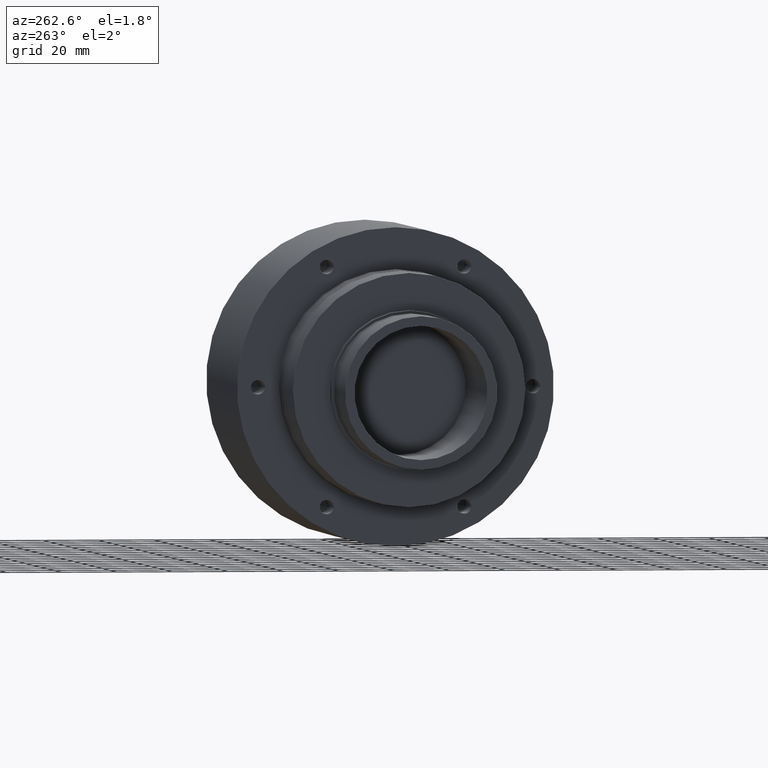
[diagram: clean part render]
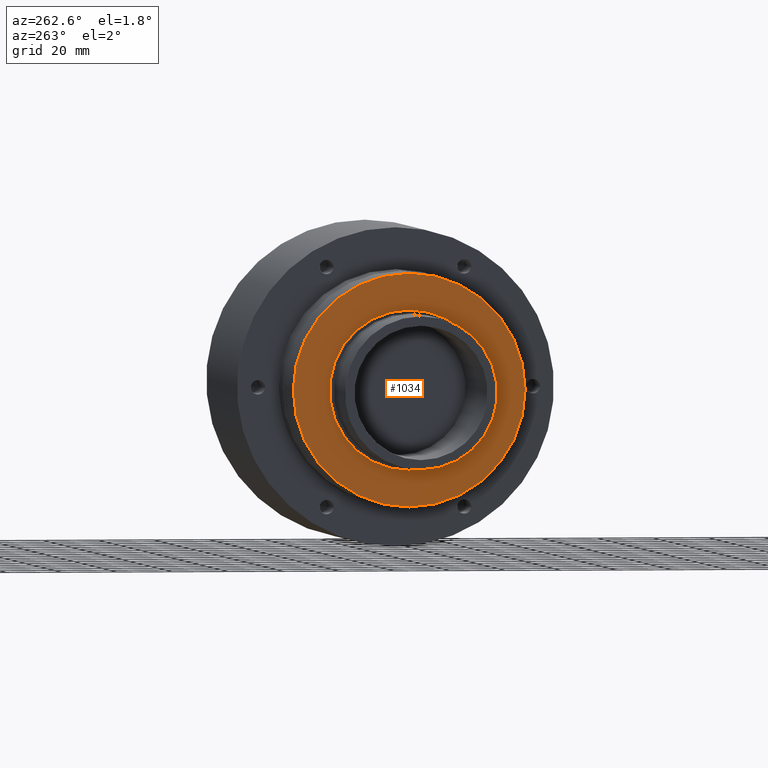
[diagram: same view with one face highlighted and labeled with its STEP entity id]
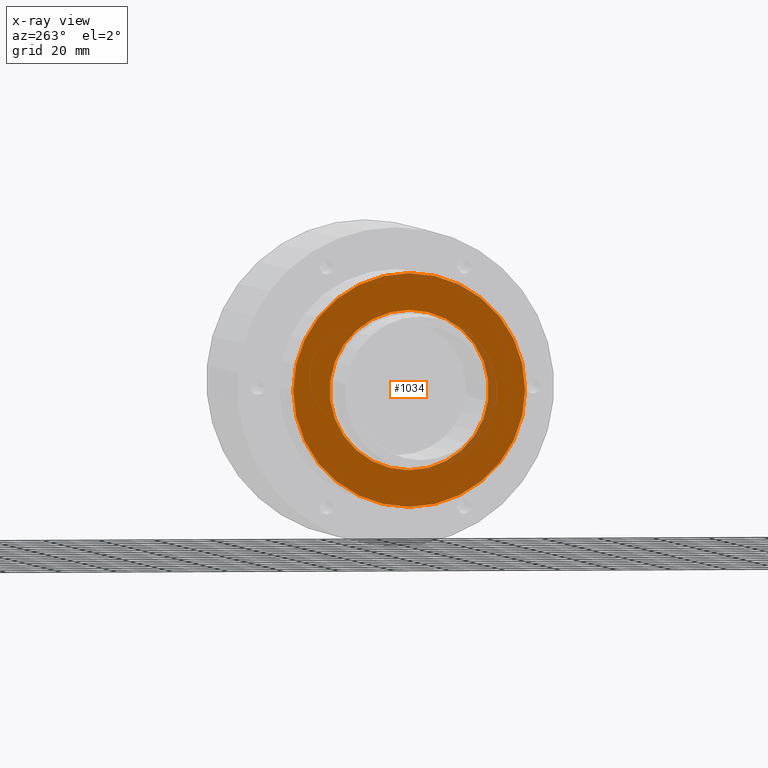
[diagram: x-ray of the same camera — body ghosted, the highlighted face saturated]
A machine part, auxiliary view. The second image highlights one B-rep face of the part: STEP entity #1034.
The next image is the same camera in x-ray: the body ghosted, the highlighted face saturated — about 5% of this face is hidden behind the body in this view.
In plain terms, the highlighted planar face has unit normal (1, 0, 0).
Its self-contained STEP definition (entity closure, byte-faithful):
#113 = CARTESIAN_POINT ( 'NONE',  ( 1.300000000000000300, 0.0000000000000000000, -1.130000000000000100 ) ) ;
#114 = CARTESIAN_POINT ( 'NONE',  ( 1.300000000000000300, 1.383850883036509000E-016, 1.130000000000000100 ) ) ;
#261 = VERTEX_POINT ( 'NONE', #114 ) ;
#262 = VERTEX_POINT ( 'NONE', #113 ) ;
#293 = VERTEX_POINT ( 'NONE', #1598 ) ;
#294 = VERTEX_POINT ( 'NONE', #1599 ) ;
#533 = EDGE_CURVE ( 'NONE', #262, #261, #1349, .T. ) ;
#534 = EDGE_CURVE ( 'NONE', #294, #293, #1350, .T. ) ;
#557 = EDGE_CURVE ( 'NONE', #261, #262, #2226, .T. ) ;
#589 = EDGE_CURVE ( 'NONE', #293, #294, #2259, .T. ) ;
#732 = EDGE_LOOP ( 'NONE', ( #926, #927 ) ) ;
#736 = EDGE_LOOP ( 'NONE', ( #928, #929 ) ) ;
#926 = ORIENTED_EDGE ( 'NONE', *, *, #534, .T. ) ;
#927 = ORIENTED_EDGE ( 'NONE', *, *, #589, .T. ) ;
#928 = ORIENTED_EDGE ( 'NONE', *, *, #533, .T. ) ;
#929 = ORIENTED_EDGE ( 'NONE', *, *, #557, .T. ) ;
#1034 = ADVANCED_FACE ( 'NONE', ( #2400, #2415 ), #2150, .F. ) ;
#1349 = CIRCLE ( 'NONE', #1404, 1.130000000000000100 ) ;
#1350 = CIRCLE ( 'NONE', #1402, 1.646500000000000300 ) ;
#1402 = AXIS2_PLACEMENT_3D ( 'NONE', #1752, #1753, #1754 ) ;
#1404 = AXIS2_PLACEMENT_3D ( 'NONE', #1744, #1750, #1751 ) ;
#1422 = AXIS2_PLACEMENT_3D ( 'NONE', #1819, #1820, #1821 ) ;
#1454 = AXIS2_PLACEMENT_3D ( 'NONE', #1915, #1916, #1917 ) ;
#1520 = AXIS2_PLACEMENT_3D ( 'NONE', #2153, #2159, #2160 ) ;
#1598 = CARTESIAN_POINT ( 'NONE',  ( 1.300000000000000000, 2.019442571793985800E-016, 1.646500000000000300 ) ) ;
#1599 = CARTESIAN_POINT ( 'NONE',  ( 1.300000000000000000, 0.0000000000000000000, -1.646500000000000300 ) ) ;
#1744 = CARTESIAN_POINT ( 'NONE',  ( 1.300000000000000000, 0.0000000000000000000, 0.0000000000000000000 ) ) ;
#1750 = DIRECTION ( 'NONE',  ( 1.000000000000000000, 0.0000000000000000000, 0.0000000000000000000 ) ) ;
#1751 = DIRECTION ( 'NONE',  ( 0.0000000000000000000, 0.0000000000000000000, -1.000000000000000000 ) ) ;
#1752 = CARTESIAN_POINT ( 'NONE',  ( 1.300000000000000000, 0.0000000000000000000, 0.0000000000000000000 ) ) ;
#1753 = DIRECTION ( 'NONE',  ( -1.000000000000000000, -0.0000000000000000000, -0.0000000000000000000 ) ) ;
#1754 = DIRECTION ( 'NONE',  ( 0.0000000000000000000, 0.0000000000000000000, -1.000000000000000000 ) ) ;
#1819 = CARTESIAN_POINT ( 'NONE',  ( 1.300000000000000000, 0.0000000000000000000, 0.0000000000000000000 ) ) ;
#1820 = DIRECTION ( 'NONE',  ( 1.000000000000000000, 0.0000000000000000000, 0.0000000000000000000 ) ) ;
#1821 = DIRECTION ( 'NONE',  ( 0.0000000000000000000, 0.0000000000000000000, -1.000000000000000000 ) ) ;
#1915 = CARTESIAN_POINT ( 'NONE',  ( 1.300000000000000000, 0.0000000000000000000, 0.0000000000000000000 ) ) ;
#1916 = DIRECTION ( 'NONE',  ( -1.000000000000000000, -0.0000000000000000000, -0.0000000000000000000 ) ) ;
#1917 = DIRECTION ( 'NONE',  ( 0.0000000000000000000, 0.0000000000000000000, -1.000000000000000000 ) ) ;
#2150 = PLANE ( 'NONE',  #1520 ) ;
#2153 = CARTESIAN_POINT ( 'NONE',  ( 1.300000000000000000, 0.0000000000000000000, 0.0000000000000000000 ) ) ;
#2159 = DIRECTION ( 'NONE',  ( 1.000000000000000000, 0.0000000000000000000, 0.0000000000000000000 ) ) ;
#2160 = DIRECTION ( 'NONE',  ( 0.0000000000000000000, 0.0000000000000000000, -1.000000000000000000 ) ) ;
#2226 = CIRCLE ( 'NONE', #1422, 1.130000000000000100 ) ;
#2259 = CIRCLE ( 'NONE', #1454, 1.646500000000000300 ) ;
#2400 = FACE_OUTER_BOUND ( 'NONE', #732, .T. ) ;
#2415 = FACE_BOUND ( 'NONE', #736, .T. ) ;